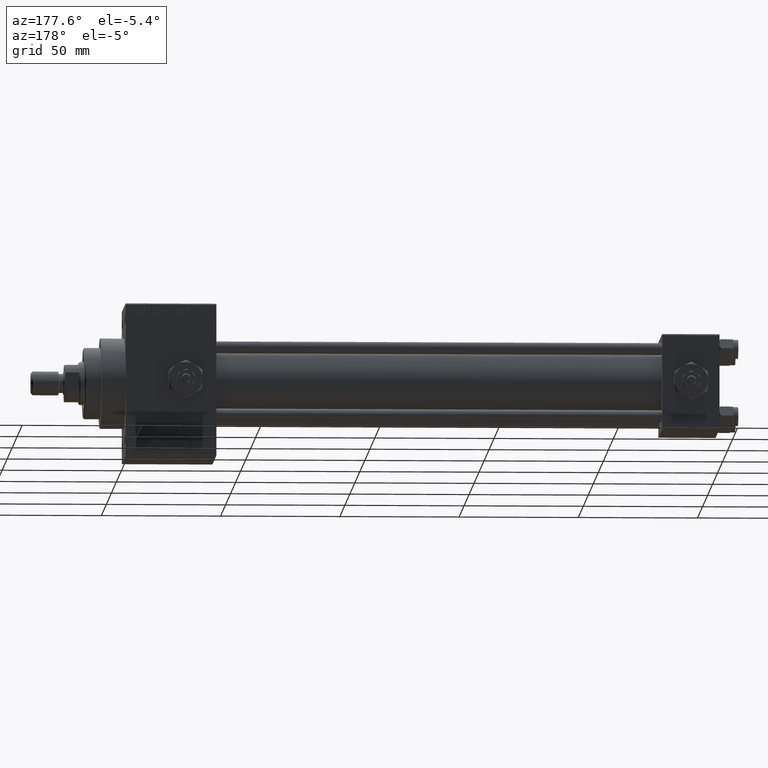
[diagram: clean part render]
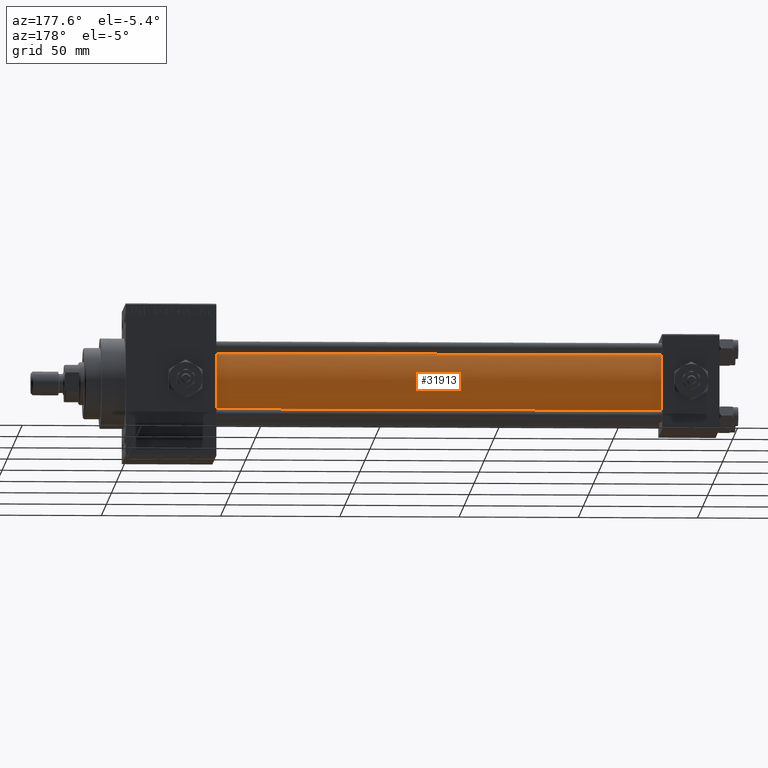
[diagram: same view with one face highlighted and labeled with its STEP entity id]
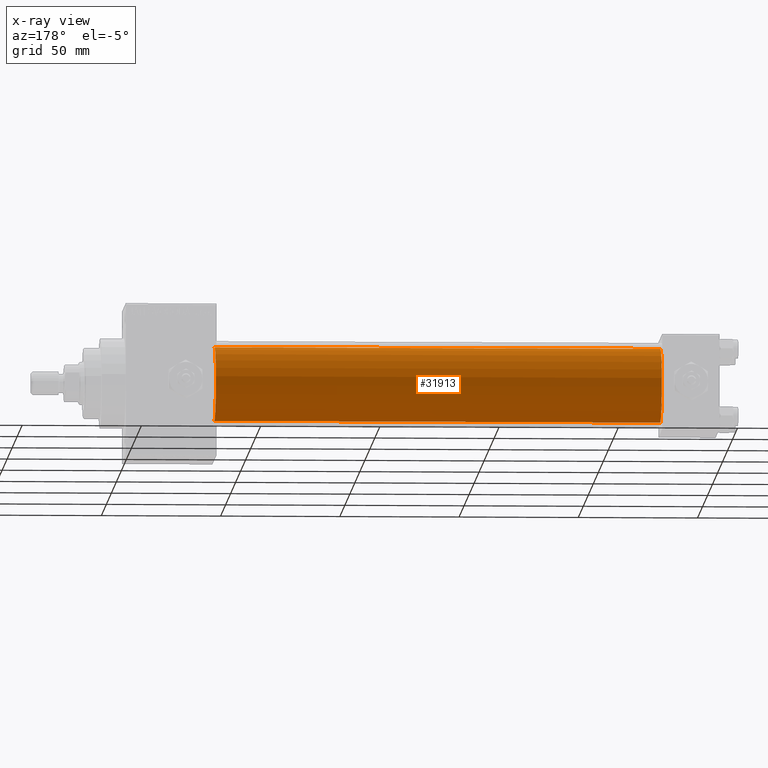
[diagram: x-ray of the same camera — body ghosted, the highlighted face saturated]
A machine part, auxiliary view. The second image highlights one B-rep face of the part: STEP entity #31913.
The next image is the same camera in x-ray: the body ghosted, the highlighted face saturated — about 0% of this face is hidden behind the body in this view.
In plain terms, the highlighted cylindrical surface (partial cylindrical patch) has radius 15.5 mm, axis along (-1, -0, -0).
Its self-contained STEP definition (entity closure, byte-faithful):
#2572 = CARTESIAN_POINT ( 'NONE',  ( 211.0000000000000000, -2.602085213965210642E-15, 15.50000000000000000 ) ) ;
#3933 = EDGE_CURVE ( 'NONE', #29155, #42514, #6822, .T. ) ;
#5114 = ORIENTED_EDGE ( 'NONE', *, *, #36174, .F. ) ;
#6101 = CARTESIAN_POINT ( 'NONE',  ( 211.0000000000000000, -2.602085213965210642E-15, 0.000000000000000000 ) ) ;
#6424 = CARTESIAN_POINT ( 'NONE',  ( 23.99999999999999289, -2.602085213965210642E-15, 15.50000000000000000 ) ) ;
#6822 = LINE ( 'NONE', #2572, #41085 ) ;
#10175 = DIRECTION ( 'NONE',  ( 0.000000000000000000, 0.000000000000000000, 1.000000000000000000 ) ) ;
#11414 = CARTESIAN_POINT ( 'NONE',  ( 211.0000000000000000, -7.038826752868131828E-16, -15.50000000000000000 ) ) ;
#12935 = EDGE_CURVE ( 'NONE', #48489, #31757, #45674, .T. ) ;
#14383 = CARTESIAN_POINT ( 'NONE',  ( 211.0000000000000000, -7.038826752868131828E-16, -15.50000000000000000 ) ) ;
#14573 = CYLINDRICAL_SURFACE ( 'NONE', #21801, 15.50000000000000000 ) ;
#14663 = EDGE_LOOP ( 'NONE', ( #5114, #39873, #36443, #17811 ) ) ;
#17230 = CARTESIAN_POINT ( 'NONE',  ( 211.0000000000000000, -2.602085213965210642E-15, 15.50000000000000000 ) ) ;
#17811 = ORIENTED_EDGE ( 'NONE', *, *, #3933, .F. ) ;
#18994 = VECTOR ( 'NONE', #23163, 1000.000000000000000 ) ;
#21444 = DIRECTION ( 'NONE',  ( 1.000000000000000000, 0.000000000000000000, 0.000000000000000000 ) ) ;
#21801 = AXIS2_PLACEMENT_3D ( 'NONE', #37589, #48842, #38083 ) ;
#23163 = DIRECTION ( 'NONE',  ( -1.000000000000000000, -0.000000000000000000, -0.000000000000000000 ) ) ;
#25196 = CARTESIAN_POINT ( 'NONE',  ( 23.99999999999999289, -2.602085213965210642E-15, 0.000000000000000000 ) ) ;
#29155 = VERTEX_POINT ( 'NONE', #17230 ) ;
#31356 = CARTESIAN_POINT ( 'NONE',  ( 23.99999999999999289, -7.038826752868131828E-16, -15.50000000000000000 ) ) ;
#31757 = VERTEX_POINT ( 'NONE', #31356 ) ;
#31913 = ADVANCED_FACE ( 'NONE', ( #37839 ), #14573, .T. ) ;
#35516 = CIRCLE ( 'NONE', #43476, 15.50000000000000000 ) ;
#36174 = EDGE_CURVE ( 'NONE', #48489, #29155, #35516, .T. ) ;
#36443 = ORIENTED_EDGE ( 'NONE', *, *, #44240, .T. ) ;
#36468 = CIRCLE ( 'NONE', #45283, 15.50000000000000000 ) ;
#37069 = DIRECTION ( 'NONE',  ( -1.000000000000000000, -0.000000000000000000, -0.000000000000000000 ) ) ;
#37589 = CARTESIAN_POINT ( 'NONE',  ( 211.0000000000000000, -2.602085213965210642E-15, 0.000000000000000000 ) ) ;
#37839 = FACE_OUTER_BOUND ( 'NONE', #14663, .T. ) ;
#38083 = DIRECTION ( 'NONE',  ( 0.000000000000000000, 0.000000000000000000, 1.000000000000000000 ) ) ;
#39865 = DIRECTION ( 'NONE',  ( 1.000000000000000000, 0.000000000000000000, 0.000000000000000000 ) ) ;
#39873 = ORIENTED_EDGE ( 'NONE', *, *, #12935, .T. ) ;
#40353 = DIRECTION ( 'NONE',  ( 0.000000000000000000, 0.000000000000000000, -1.000000000000000000 ) ) ;
#41085 = VECTOR ( 'NONE', #37069, 1000.000000000000000 ) ;
#42514 = VERTEX_POINT ( 'NONE', #6424 ) ;
#43476 = AXIS2_PLACEMENT_3D ( 'NONE', #6101, #39865, #40353 ) ;
#44240 = EDGE_CURVE ( 'NONE', #31757, #42514, #36468, .T. ) ;
#45283 = AXIS2_PLACEMENT_3D ( 'NONE', #25196, #21444, #10175 ) ;
#45674 = LINE ( 'NONE', #11414, #18994 ) ;
#48489 = VERTEX_POINT ( 'NONE', #14383 ) ;
#48842 = DIRECTION ( 'NONE',  ( -1.000000000000000000, -0.000000000000000000, -0.000000000000000000 ) ) ;